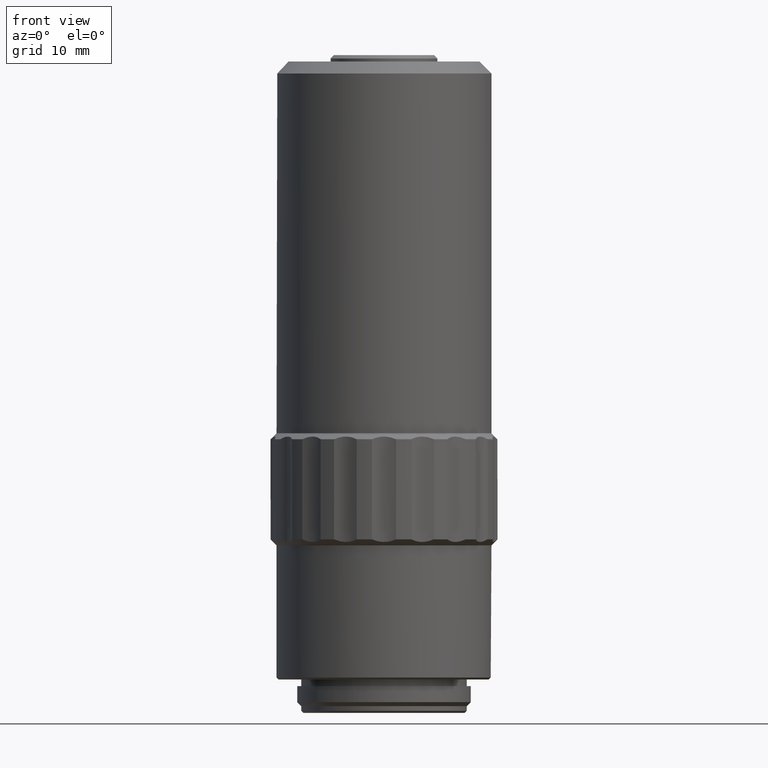
[diagram: clean part render]
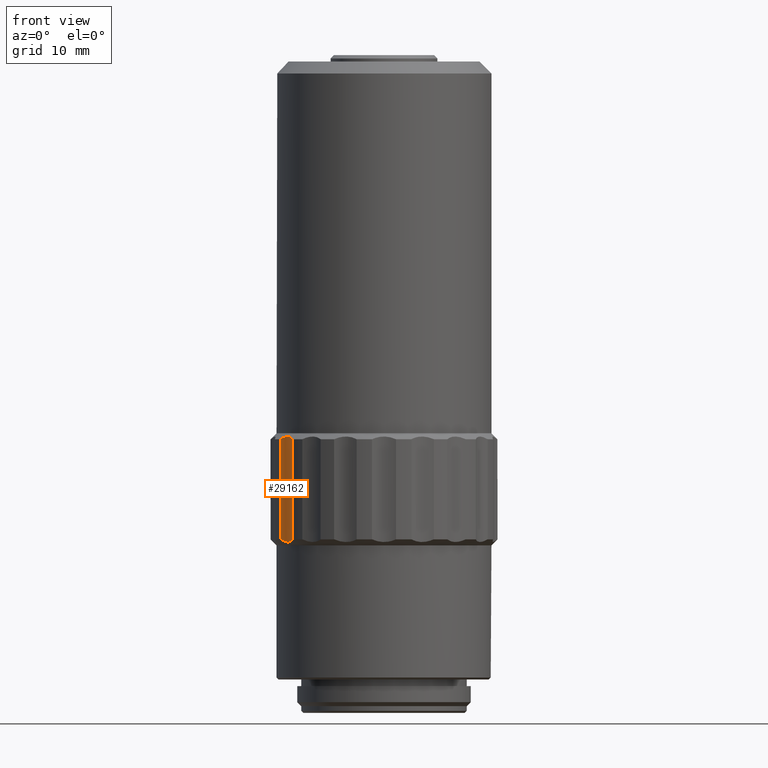
[diagram: same view with one face highlighted and labeled with its STEP entity id]
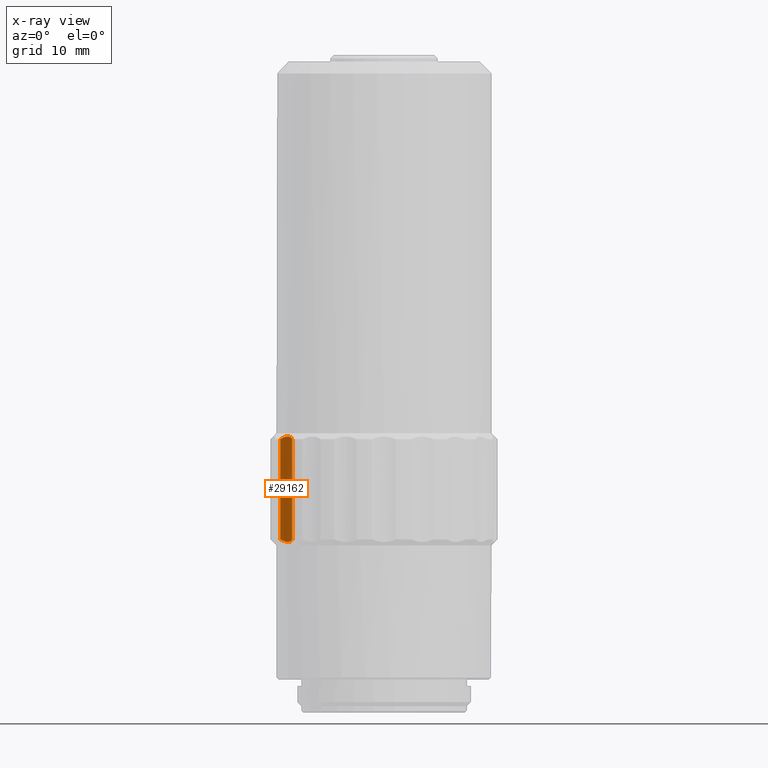
[diagram: x-ray of the same camera — body ghosted, the highlighted face saturated]
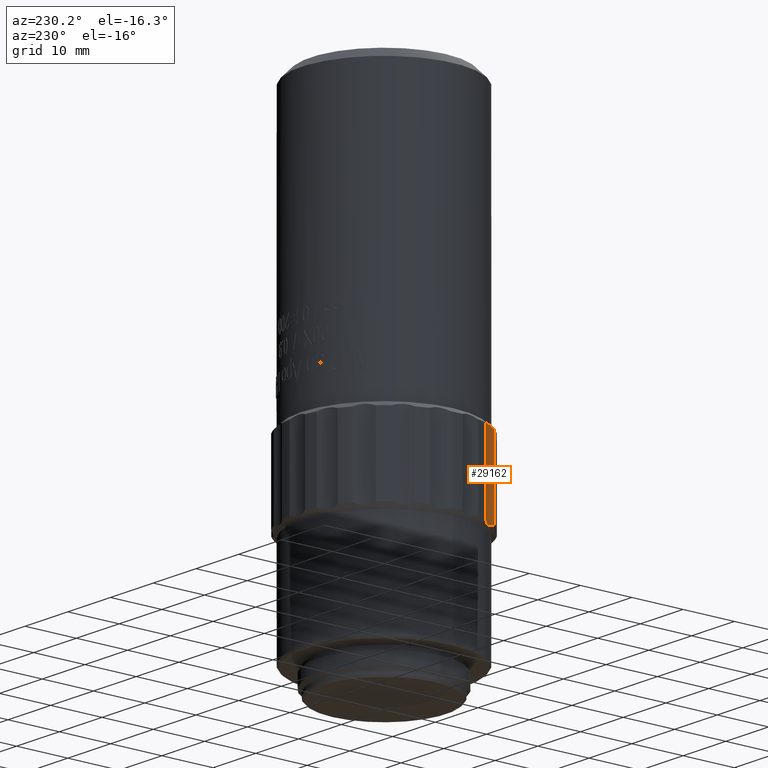
[diagram: same view with one face highlighted and labeled with its STEP entity id]
A machine part, front view. The second image highlights one B-rep face of the part: STEP entity #29162.
The next image is the same camera in x-ray: the body ghosted, the highlighted face saturated — about 0% of this face is hidden behind the body in this view.
A second angle (auxiliary view) of the same face is appended — the face is thin or edge-on in the first view.
In plain terms, the highlighted cylindrical surface (edge-blend (fillet) strip) has radius 5.4 mm, axis along (0, -0, 1).
Its self-contained STEP definition (entity closure, byte-faithful):
#308 = CARTESIAN_POINT ( 'NONE',  ( -14.22132855150384500, -8.567687747968822300, 25.59983523213446300 ) ) ;
#1838 = DIRECTION ( 'NONE',  ( 1.000000000000000000, 0.0000000000000000000, 0.0000000000000000000 ) ) ;
#1997 = CARTESIAN_POINT ( 'NONE',  ( -15.53576349476724200, -6.902177383598429500, 25.99999999999999600 ) ) ;
#2242 = CARTESIAN_POINT ( 'NONE',  ( -15.10661523731615600, -7.300944566225213700, 25.77572455382300700 ) ) ;
#2294 = CARTESIAN_POINT ( 'NONE',  ( -15.10404956711047900, -7.303743748790772400, 41.22535551325380300 ) ) ;
#3504 = CARTESIAN_POINT ( 'NONE',  ( -13.74534270300618200, -10.00327716185625500, 25.99999999999999600 ) ) ;
#4896 = CARTESIAN_POINT ( 'NONE',  ( -15.53576349476723800, -6.902177383598433000, 40.99999999999999300 ) ) ;
#5817 = CARTESIAN_POINT ( 'NONE',  ( -14.45499176149272100, -8.163345471629334300, 25.60008324582646100 ) ) ;
#6107 = CARTESIAN_POINT ( 'NONE',  ( -15.53576349476724200, -6.902177383598429500, 25.99999999999999600 ) ) ;
#6384 = B_SPLINE_CURVE_WITH_KNOTS ( 'NONE', 3,
 ( #10426, #13234, #32421, #16007, #34970, #32175, #27169, #35213, #18750, #2294, #27047, #10548 ),
 .UNSPECIFIED., .F., .F.,
 ( 4, 2, 2, 2, 2, 4 ),
 ( 5.014949643562473700E-007, 0.0009371267741273076500, 0.001405439413708780600, 0.001873752053290254000, 0.002810377332453200600, 0.003747002611616146800 ),
 .UNSPECIFIED. ) ;
#6915 = ORIENTED_EDGE ( 'NONE', *, *, #20172, .T. ) ;
#7856 = CARTESIAN_POINT ( 'NONE',  ( -14.53853958338832300, -8.032198147968875500, 25.60907706638400700 ) ) ;
#8004 = ORIENTED_EDGE ( 'NONE', *, *, #21348, .T. ) ;
#8026 = LINE ( 'NONE', #15944, #10143 ) ;
#10143 = VECTOR ( 'NONE', #21795, 1000.000000000000000 ) ;
#10426 = CARTESIAN_POINT ( 'NONE',  ( -13.74534270300618200, -10.00327716185625000, 40.99999999999999300 ) ) ;
#10492 = CARTESIAN_POINT ( 'NONE',  ( -14.81237199277128600, -7.652734590218655000, 25.67178876021249000 ) ) ;
#10548 = CARTESIAN_POINT ( 'NONE',  ( -15.53576349476723800, -6.902177383598433000, 40.99999999999999300 ) ) ;
#11333 = CARTESIAN_POINT ( 'NONE',  ( -13.74534270300618200, -10.00327716185625000, 40.99999999999999300 ) ) ;
#11453 = CARTESIAN_POINT ( 'NONE',  ( -15.53576349476724200, -6.902177383598429500, 59.94999999999998200 ) ) ;
#12280 = DIRECTION ( 'NONE',  ( 0.0000000000000000000, -0.0000000000000000000, 1.000000000000000000 ) ) ;
#13234 = CARTESIAN_POINT ( 'NONE',  ( -13.79889855136977900, -9.718110158447675700, 41.12449771076493500 ) ) ;
#13571 = VERTEX_POINT ( 'NONE', #3504 ) ;
#15333 = FACE_OUTER_BOUND ( 'NONE', #26292, .T. ) ;
#15925 = ORIENTED_EDGE ( 'NONE', *, *, #22818, .F. ) ;
#15944 = CARTESIAN_POINT ( 'NONE',  ( -13.74534270300618200, -10.00327716185625500, 59.94999999999998200 ) ) ;
#15958 = CARTESIAN_POINT ( 'NONE',  ( -15.31557954967612800, -7.091141610506821500, 25.87550228923505800 ) ) ;
#16007 = CARTESIAN_POINT ( 'NONE',  ( -14.03364855993481400, -9.001523140935866300, 41.32821123978750000 ) ) ;
#17085 = AXIS2_PLACEMENT_3D ( 'NONE', #34801, #20103, #1838 ) ;
#18018 = LINE ( 'NONE', #11453, #30056 ) ;
#18750 = CARTESIAN_POINT ( 'NONE',  ( -14.71292823887357100, -7.771898086393942900, 41.36316229535999200 ) ) ;
#19918 = ORIENTED_EDGE ( 'NONE', *, *, #28512, .F. ) ;
#20103 = DIRECTION ( 'NONE',  ( 0.0000000000000000000, -0.0000000000000000000, 1.000000000000000000 ) ) ;
#20172 = EDGE_CURVE ( 'NONE', #26612, #13571, #33073, .T. ) ;
#21348 = EDGE_CURVE ( 'NONE', #22324, #28084, #6384, .T. ) ;
#21795 = DIRECTION ( 'NONE',  ( -0.0000000000000000000, 0.0000000000000000000, -1.000000000000000000 ) ) ;
#22324 = VERTEX_POINT ( 'NONE', #11333 ) ;
#22818 = EDGE_CURVE ( 'NONE', #26612, #28084, #18018, .T. ) ;
#24342 = CARTESIAN_POINT ( 'NONE',  ( -14.71694644180602700, -7.777162301628902900, 25.64478497091398200 ) ) ;
#26081 = CYLINDRICAL_SURFACE ( 'NONE', #17085, 5.400000000000000400 ) ;
#26292 = EDGE_LOOP ( 'NONE', ( #6915, #19918, #8004, #15925 ) ) ;
#26612 = VERTEX_POINT ( 'NONE', #6107 ) ;
#27047 = CARTESIAN_POINT ( 'NONE',  ( -15.31542726724254600, -7.091272300927153400, 41.12458381520077200 ) ) ;
#27169 = CARTESIAN_POINT ( 'NONE',  ( -14.29716043904594400, -8.436717341132935000, 41.39991675417352500 ) ) ;
#27244 = CARTESIAN_POINT ( 'NONE',  ( -13.79893559137702600, -9.717912932781477100, 25.87541618479923100 ) ) ;
#27717 = CARTESIAN_POINT ( 'NONE',  ( -14.08712529787752400, -8.855820575725116900, 25.63683770464000100 ) ) ;
#28084 = VERTEX_POINT ( 'NONE', #4896 ) ;
#28512 = EDGE_CURVE ( 'NONE', #22324, #13571, #8026, .T. ) ;
#29162 = ADVANCED_FACE ( 'NONE', ( #15333 ), #26081, .F. ) ;
#30056 = VECTOR ( 'NONE', #12280, 1000.000000000000000 ) ;
#32175 = CARTESIAN_POINT ( 'NONE',  ( -14.22535743606545500, -8.574645539155612900, 41.39092293361598300 ) ) ;
#32421 = CARTESIAN_POINT ( 'NONE',  ( -13.87611108463098300, -9.432240277600392600, 41.22427544617698200 ) ) ;
#32868 = CARTESIAN_POINT ( 'NONE',  ( -13.74534270300618200, -10.00327716185625500, 25.99999999999999600 ) ) ;
#33073 = B_SPLINE_CURVE_WITH_KNOTS ( 'NONE', 3,
 ( #1997, #15958, #2242, #10492, #24342, #7856, #5817, #308, #27717, #33109, #27244, #32868 ),
 .UNSPECIFIED., .F., .F.,
 ( 4, 2, 2, 2, 2, 4 ),
 ( 5.014949643559189400E-007, 0.0009371267741272970300, 0.001405439413708770000, 0.001873752053290245500, 0.002810377332453200600, 0.003747002611616155900 ),
 .UNSPECIFIED. ) ;
#33109 = CARTESIAN_POINT ( 'NONE',  ( -13.87725241273975200, -9.428618750741771100, 25.77464448674619400 ) ) ;
#34801 = CARTESIAN_POINT ( 'NONE',  ( -19.05255888325760300, -11.00000000000008900, 21.34999999999996600 ) ) ;
#34970 = CARTESIAN_POINT ( 'NONE',  ( -14.09369334346821700, -8.856668333924696800, 41.35521502908601800 ) ) ;
#35213 = CARTESIAN_POINT ( 'NONE',  ( -14.53049951718553600, -8.032187927183001000, 41.40016476786551900 ) ) ;